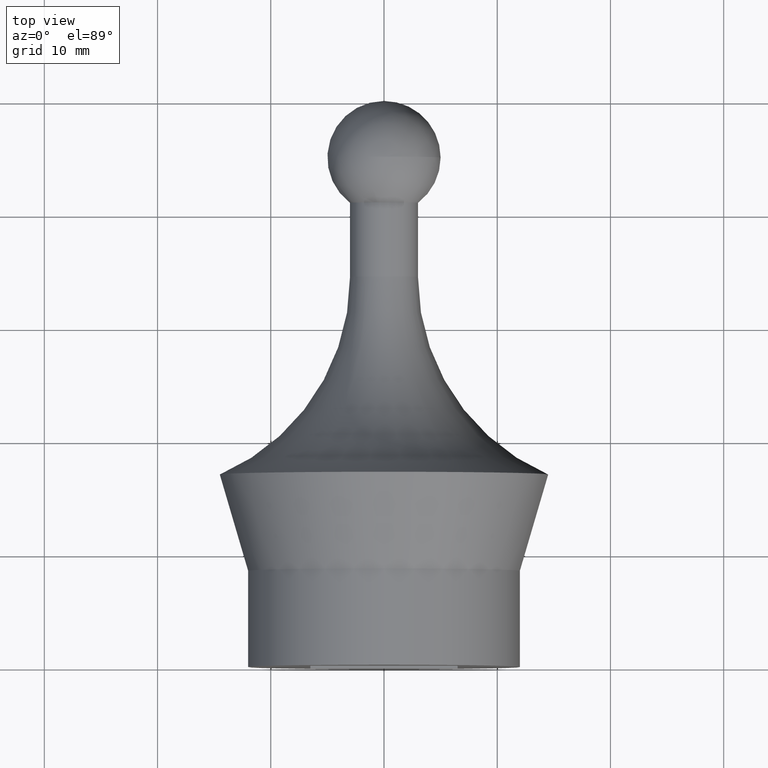
[diagram: clean part render]
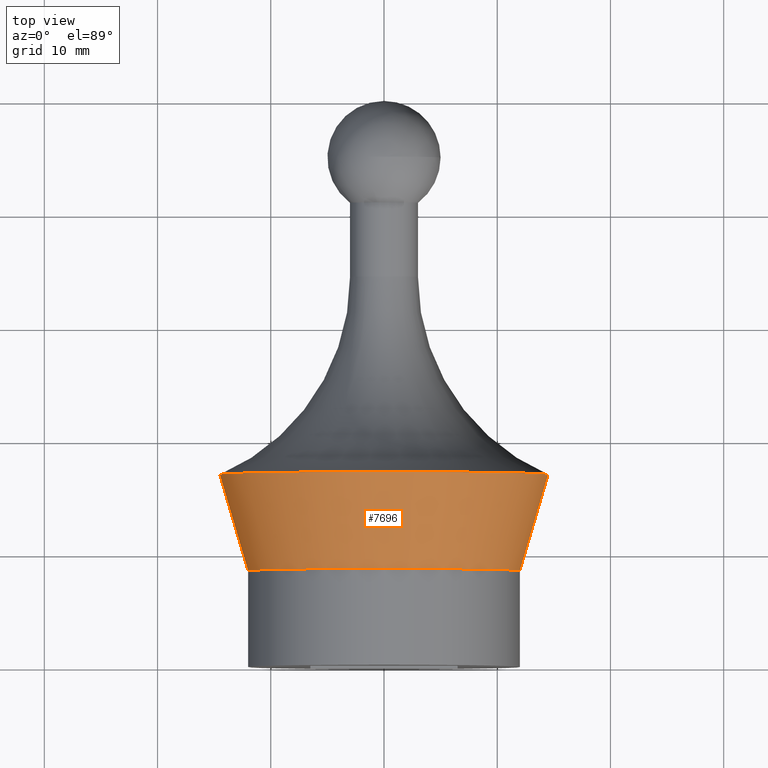
[diagram: same view with one face highlighted and labeled with its STEP entity id]
A machine part, top view. The second image highlights one B-rep face of the part: STEP entity #7696.
In plain terms, the highlighted conical surface has half-angle 16.39 deg.
Its self-contained STEP definition (entity closure, byte-faithful):
#20 = ORIENTED_EDGE ( 'NONE', *, *, #860, .T. ) ;
#860 = EDGE_CURVE ( 'NONE', #9259, #4113, #10699, .T. ) ;
#965 = VECTOR ( 'NONE', #1319, 1000.000000000000114 ) ;
#1280 = CARTESIAN_POINT ( 'NONE',  ( -12.00000000000001066, 8.500000000000035527, 0.000000000000000000 ) ) ;
#1319 = DIRECTION ( 'NONE',  ( 0.2821663239915480625, 0.9593655015712710954, 3.455540855034243745E-17 ) ) ;
#1331 = VERTEX_POINT ( 'NONE', #5207 ) ;
#1477 = CARTESIAN_POINT ( 'NONE',  ( 14.49999999999998757, 17.00000000000001421, 0.000000000000000000 ) ) ;
#1548 = CARTESIAN_POINT ( 'NONE',  ( 5.204748896376272886E-17, 8.500000000000035527, 0.000000000000000000 ) ) ;
#2163 = CARTESIAN_POINT ( 'NONE',  ( 12.00000000000001066, 8.500000000000035527, 1.469576158976825131E-15 ) ) ;
#2253 = CARTESIAN_POINT ( 'NONE',  ( 12.00000000000001066, 8.500000000000035527, 0.000000000000000000 ) ) ;
#2316 = AXIS2_PLACEMENT_3D ( 'NONE', #7098, #5413, #9647 ) ;
#2326 = LINE ( 'NONE', #1280, #6302 ) ;
#2330 = VERTEX_POINT ( 'NONE', #2253 ) ;
#2705 = CARTESIAN_POINT ( 'NONE',  ( 5.204748896376272886E-17, 8.500000000000035527, 0.000000000000000000 ) ) ;
#2817 = EDGE_CURVE ( 'NONE', #1331, #4113, #2326, .T. ) ;
#3211 = ORIENTED_EDGE ( 'NONE', *, *, #4152, .F. ) ;
#3520 = CARTESIAN_POINT ( 'NONE',  ( -14.49999999999998757, 17.00000000000001421, 1.775737858763660437E-15 ) ) ;
#4113 = VERTEX_POINT ( 'NONE', #3520 ) ;
#4121 = DIRECTION ( 'NONE',  ( 6.123233995736766344E-18, 1.000000000000000000, 0.000000000000000000 ) ) ;
#4152 = EDGE_CURVE ( 'NONE', #2330, #1331, #6071, .T. ) ;
#4169 = DIRECTION ( 'NONE',  ( -1.000000000000000000, 0.000000000000000000, 0.000000000000000000 ) ) ;
#4266 = FACE_OUTER_BOUND ( 'NONE', #6141, .T. ) ;
#4814 = LINE ( 'NONE', #2163, #965 ) ;
#5207 = CARTESIAN_POINT ( 'NONE',  ( -12.00000000000001066, 8.500000000000035527, 1.469576158976825131E-15 ) ) ;
#5301 = DIRECTION ( 'NONE',  ( -6.123233995736766344E-18, -1.000000000000000000, -0.000000000000000000 ) ) ;
#5370 = AXIS2_PLACEMENT_3D ( 'NONE', #2705, #5301, #6157 ) ;
#5413 = DIRECTION ( 'NONE',  ( -6.123233995736766344E-18, -1.000000000000000000, -0.000000000000000000 ) ) ;
#6071 = CIRCLE ( 'NONE', #5370, 12.00000000000001066 ) ;
#6141 = EDGE_LOOP ( 'NONE', ( #3211, #6291, #20, #9034 ) ) ;
#6157 = DIRECTION ( 'NONE',  ( 1.000000000000000000, 0.000000000000000000, 0.000000000000000000 ) ) ;
#6285 = CONICAL_SURFACE ( 'NONE', #6372, 12.00000000000001066, 0.2860514417173160018 ) ;
#6291 = ORIENTED_EDGE ( 'NONE', *, *, #10292, .T. ) ;
#6302 = VECTOR ( 'NONE', #10288, 1000.000000000000114 ) ;
#6372 = AXIS2_PLACEMENT_3D ( 'NONE', #1548, #4121, #4169 ) ;
#7098 = CARTESIAN_POINT ( 'NONE',  ( 1.040949779275251126E-16, 17.00000000000001421, 0.000000000000000000 ) ) ;
#7696 = ADVANCED_FACE ( 'NONE', ( #4266 ), #6285, .T. ) ;
#9034 = ORIENTED_EDGE ( 'NONE', *, *, #2817, .F. ) ;
#9259 = VERTEX_POINT ( 'NONE', #1477 ) ;
#9647 = DIRECTION ( 'NONE',  ( 1.000000000000000000, 0.000000000000000000, 0.000000000000000000 ) ) ;
#10288 = DIRECTION ( 'NONE',  ( -0.2821663239915480625, 0.9593655015712710954, 0.000000000000000000 ) ) ;
#10292 = EDGE_CURVE ( 'NONE', #2330, #9259, #4814, .T. ) ;
#10699 = CIRCLE ( 'NONE', #2316, 14.49999999999998579 ) ;